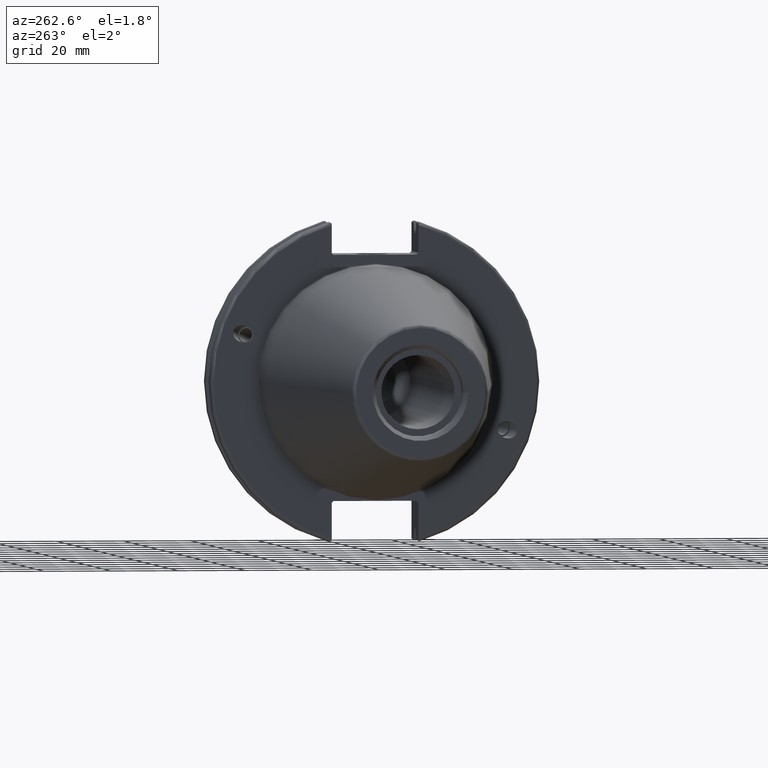
[diagram: clean part render]
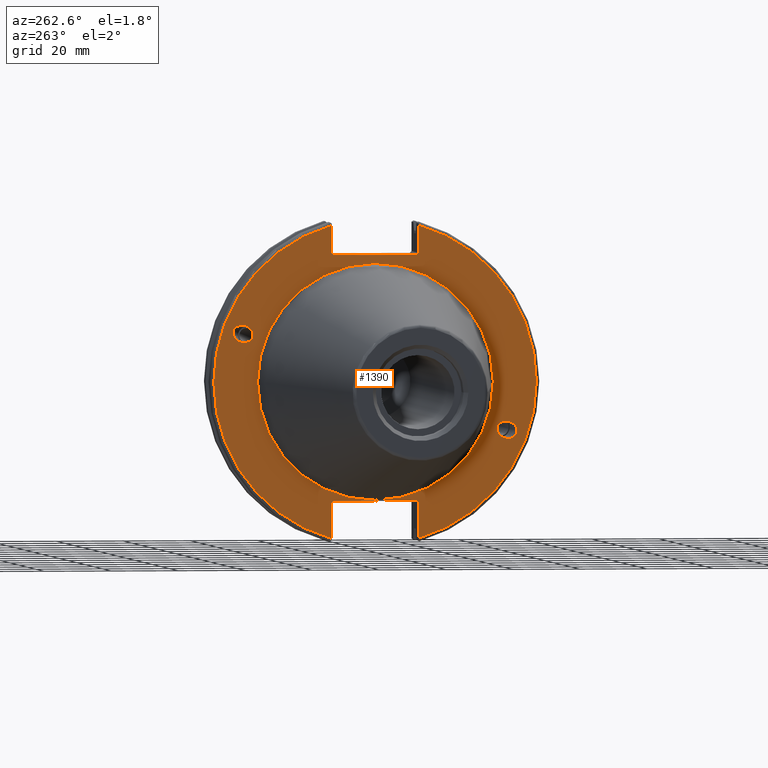
[diagram: same view with one face highlighted and labeled with its STEP entity id]
A machine part, auxiliary view. The second image highlights one B-rep face of the part: STEP entity #1390.
In plain terms, the highlighted planar face has unit normal (-1, 0, 0).
Its self-contained STEP definition (entity closure, byte-faithful):
#31=ELLIPSE('',#1506,3.05193647190364,2.5);
#32=ELLIPSE('',#1540,3.05193647190364,2.5);
#43=PLANE('',#1546);
#74=FACE_BOUND('',#236,.T.);
#75=FACE_BOUND('',#237,.T.);
#76=FACE_BOUND('',#238,.T.);
#148=FACE_OUTER_BOUND('',#235,.T.);
#235=EDGE_LOOP('',(#1101,#1102,#1103,#1104,#1105,#1106,#1107,#1108,#1109,
#1110,#1111,#1112));
#236=EDGE_LOOP('',(#1113));
#237=EDGE_LOOP('',(#1114));
#238=EDGE_LOOP('',(#1115));
#334=CIRCLE('',#1544,35.125);
#336=CIRCLE('',#1547,48.2125);
#337=CIRCLE('',#1548,48.2125);
#402=LINE('',#2467,#490);
#403=LINE('',#2469,#491);
#404=LINE('',#2471,#492);
#405=LINE('',#2473,#493);
#406=LINE('',#2475,#494);
#407=LINE('',#2479,#495);
#408=LINE('',#2481,#496);
#409=LINE('',#2483,#497);
#410=LINE('',#2485,#498);
#411=LINE('',#2486,#499);
#490=VECTOR('',#1839,10.);
#491=VECTOR('',#1840,10.);
#492=VECTOR('',#1841,10.);
#493=VECTOR('',#1842,10.);
#494=VECTOR('',#1843,10.);
#495=VECTOR('',#1846,10.);
#496=VECTOR('',#1847,10.);
#497=VECTOR('',#1848,10.);
#498=VECTOR('',#1849,10.);
#499=VECTOR('',#1850,10.);
#607=VERTEX_POINT('',#2213);
#650=VERTEX_POINT('',#2451);
#653=VERTEX_POINT('',#2458);
#654=VERTEX_POINT('',#2463);
#655=VERTEX_POINT('',#2464);
#656=VERTEX_POINT('',#2466);
#657=VERTEX_POINT('',#2468);
#658=VERTEX_POINT('',#2470);
#659=VERTEX_POINT('',#2472);
#660=VERTEX_POINT('',#2474);
#661=VERTEX_POINT('',#2476);
#662=VERTEX_POINT('',#2478);
#663=VERTEX_POINT('',#2480);
#664=VERTEX_POINT('',#2482);
#665=VERTEX_POINT('',#2484);
#762=EDGE_CURVE('',#607,#607,#31,.T.);
#817=EDGE_CURVE('',#650,#650,#32,.T.);
#820=EDGE_CURVE('',#653,#653,#334,.T.);
#822=EDGE_CURVE('',#654,#655,#336,.T.);
#823=EDGE_CURVE('',#654,#656,#402,.T.);
#824=EDGE_CURVE('',#657,#656,#403,.T.);
#825=EDGE_CURVE('',#657,#658,#404,.T.);
#826=EDGE_CURVE('',#659,#658,#405,.T.);
#827=EDGE_CURVE('',#659,#660,#406,.T.);
#828=EDGE_CURVE('',#661,#660,#337,.T.);
#829=EDGE_CURVE('',#661,#662,#407,.T.);
#830=EDGE_CURVE('',#663,#662,#408,.T.);
#831=EDGE_CURVE('',#663,#664,#409,.T.);
#832=EDGE_CURVE('',#665,#664,#410,.T.);
#833=EDGE_CURVE('',#665,#655,#411,.T.);
#1101=ORIENTED_EDGE('',*,*,#822,.F.);
#1102=ORIENTED_EDGE('',*,*,#823,.T.);
#1103=ORIENTED_EDGE('',*,*,#824,.F.);
#1104=ORIENTED_EDGE('',*,*,#825,.T.);
#1105=ORIENTED_EDGE('',*,*,#826,.F.);
#1106=ORIENTED_EDGE('',*,*,#827,.T.);
#1107=ORIENTED_EDGE('',*,*,#828,.F.);
#1108=ORIENTED_EDGE('',*,*,#829,.T.);
#1109=ORIENTED_EDGE('',*,*,#830,.F.);
#1110=ORIENTED_EDGE('',*,*,#831,.T.);
#1111=ORIENTED_EDGE('',*,*,#832,.F.);
#1112=ORIENTED_EDGE('',*,*,#833,.T.);
#1113=ORIENTED_EDGE('',*,*,#762,.T.);
#1114=ORIENTED_EDGE('',*,*,#817,.T.);
#1115=ORIENTED_EDGE('',*,*,#820,.F.);
#1390=ADVANCED_FACE('',(#148,#74,#75,#76),#43,.T.);
#1506=AXIS2_PLACEMENT_3D('',#2215,#1736,#1737);
#1540=AXIS2_PLACEMENT_3D('',#2453,#1823,#1824);
#1544=AXIS2_PLACEMENT_3D('',#2460,#1831,#1832);
#1546=AXIS2_PLACEMENT_3D('',#2462,#1835,#1836);
#1547=AXIS2_PLACEMENT_3D('',#2465,#1837,#1838);
#1548=AXIS2_PLACEMENT_3D('',#2477,#1844,#1845);
#1736=DIRECTION('center_axis',(1.,0.,0.));
#1737=DIRECTION('ref_axis',(0.,-0.939692620785908,-0.342020143325668));
#1823=DIRECTION('center_axis',(1.,0.,0.));
#1824=DIRECTION('ref_axis',(0.,0.939692620785908,0.342020143325669));
#1831=DIRECTION('center_axis',(-1.,0.,0.));
#1832=DIRECTION('ref_axis',(0.,-1.,1.83697019872103E-16));
#1835=DIRECTION('center_axis',(-1.,0.,0.));
#1836=DIRECTION('ref_axis',(0.,0.,1.));
#1837=DIRECTION('center_axis',(1.,0.,0.));
#1838=DIRECTION('ref_axis',(0.,-1.,1.60812264967664E-16));
#1839=DIRECTION('',(0.,0.,-1.));
#1840=DIRECTION('',(0.,-0.707106781186549,0.707106781186546));
#1841=DIRECTION('',(0.,1.,0.));
#1842=DIRECTION('',(0.,-0.707106781186549,-0.707106781186546));
#1843=DIRECTION('',(0.,0.,1.));
#1844=DIRECTION('center_axis',(1.,0.,0.));
#1845=DIRECTION('ref_axis',(0.,1.,-6.12323399573677E-17));
#1846=DIRECTION('',(0.,0.,1.));
#1847=DIRECTION('',(0.,0.707106781186549,-0.707106781186546));
#1848=DIRECTION('',(0.,-1.,0.));
#1849=DIRECTION('',(0.,0.707106781186549,0.707106781186546));
#1850=DIRECTION('',(0.,0.,-1.));
#2213=CARTESIAN_POINT('',(3.175,-36.5992078912529,-13.3210222701368));
#2215=CARTESIAN_POINT('Origin',(3.175,-39.4670900730082,-14.3648460196781));
#2451=CARTESIAN_POINT('',(3.175,36.5992078912529,13.3210222701368));
#2453=CARTESIAN_POINT('Origin',(3.175,39.4670900730082,14.3648460196781));
#2458=CARTESIAN_POINT('',(3.175,-4.30157188200508E-15,35.125));
#2460=CARTESIAN_POINT('Origin',(3.175,0.,0.));
#2462=CARTESIAN_POINT('Origin',(3.175,49.2125,0.));
#2463=CARTESIAN_POINT('',(3.175,-12.95,46.4407434937254));
#2464=CARTESIAN_POINT('',(3.175,-12.95,-46.4407434937254));
#2465=CARTESIAN_POINT('Origin',(3.175,0.,0.));
#2466=CARTESIAN_POINT('',(3.175,-12.95,38.219));
#2467=CARTESIAN_POINT('',(3.175,-12.95,18.8595));
#2468=CARTESIAN_POINT('',(3.175,-12.45,37.719));
#2469=CARTESIAN_POINT('',(3.175,12.2703750000001,12.998625));
#2470=CARTESIAN_POINT('',(3.175,12.45,37.719));
#2471=CARTESIAN_POINT('',(3.175,24.60625,37.719));
#2472=CARTESIAN_POINT('',(3.175,12.95,38.219));
#2473=CARTESIAN_POINT('',(3.175,12.335875,37.604875));
#2474=CARTESIAN_POINT('',(3.175,12.95,46.4407434937254));
#2475=CARTESIAN_POINT('',(3.175,12.95,18.8595));
#2476=CARTESIAN_POINT('',(3.175,12.95,-46.4407434937254));
#2477=CARTESIAN_POINT('Origin',(3.175,0.,0.));
#2478=CARTESIAN_POINT('',(3.175,12.95,-35.806));
#2479=CARTESIAN_POINT('',(3.175,12.95,-17.653));
#2480=CARTESIAN_POINT('',(3.175,12.45,-35.306));
#2481=CARTESIAN_POINT('',(3.175,12.939125,-35.795125));
#2482=CARTESIAN_POINT('',(3.175,-12.45,-35.306));
#2483=CARTESIAN_POINT('',(3.175,24.60625,-35.306));
#2484=CARTESIAN_POINT('',(3.175,-12.95,-35.806));
#2485=CARTESIAN_POINT('',(3.175,11.6671250000001,-11.188875));
#2486=CARTESIAN_POINT('',(3.175,-12.95,-17.653));